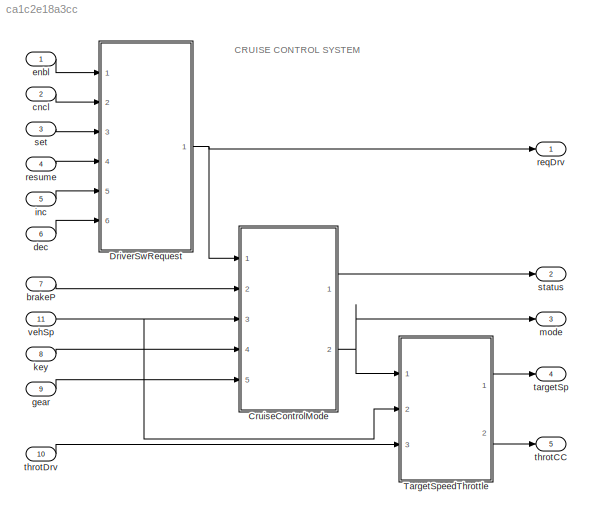
MODEL slx_ca1c2e18a3cc
KIND model
CONFIG AbsTol = auto
CONFIG EnableMultiTasking = off
CONFIG FixedStep = Ts
CONFIG MaxStep = auto
CONFIG MinStep = auto
CONFIG RelTol = 1e-3
CONFIG SampleTimeConstraint = Unconstrained
CONFIG SolverName = FixedStepDiscrete
CONFIG StartTime = 0.0
CONFIG StopTime = 10.0
BLOCK [ModelReference] CruiseControlMode
  ModelNameDialog = CruiseControlMode.slx
  ModelReferenceVersion = 4.7
  Ports = [5, 2]
BLOCK [ModelReference] DriverSwRequest
  ModelNameDialog = DriverSwRequest
  ModelReferenceVersion = 4.8
  Ports = [6, 1]
BLOCK [ModelReference] TargetSpeedThrottle
  ModelNameDialog = TargetSpeedThrottle
  ModelReferenceVersion = 4.7
  Ports = [3, 2]
BLOCK [Inport] brakeP
  Port = 7
BLOCK [Inport] cncl
  OutDataTypeStr = boolean
  Port = 2
BLOCK [Inport] dec
  OutDataTypeStr = boolean
  Port = 6
BLOCK [Inport] enbl
  OutDataTypeStr = boolean
BLOCK [Inport] gear
  Interpolate = off
  Port = 9
BLOCK [Inport] inc
  OutDataTypeStr = boolean
  Port = 5
BLOCK [Inport] key
  Port = 8
BLOCK [Outport] mode
  Port = 3
  VectorParamsAs1DForOutWhenUnconnected = off
BLOCK [Outport] reqDrv
  VectorParamsAs1DForOutWhenUnconnected = off
BLOCK [Inport] resume
  OutDataTypeStr = boolean
  Port = 4
BLOCK [Inport] set
  OutDataTypeStr = boolean
  Port = 3
BLOCK [Outport] status
  Port = 2
  VectorParamsAs1DForOutWhenUnconnected = off
BLOCK [Outport] targetSp
  Port = 4
  VectorParamsAs1DForOutWhenUnconnected = off
BLOCK [Outport] throtCC
  Port = 5
  VectorParamsAs1DForOutWhenUnconnected = off
BLOCK [Inport] throtDrv
  Port = 10
BLOCK [Inport] vehSp
  Port = 11
ANNOTATION (root): CRUISE CONTROL SYSTEM
LINE CruiseControlMode:1 -> status:1
NET CruiseControlMode:2 -> TargetSpeedThrottle:1, mode:1
NET DriverSwRequest:1 -> CruiseControlMode:1, reqDrv:1
LINE TargetSpeedThrottle:1 -> targetSp:1
LINE TargetSpeedThrottle:2 -> throtCC:1
LINE brakeP:1 -> CruiseControlMode:2
LINE cncl:1 -> DriverSwRequest:2
LINE dec:1 -> DriverSwRequest:6
LINE enbl:1 -> DriverSwRequest:1
LINE gear:1 -> CruiseControlMode:5
LINE inc:1 -> DriverSwRequest:5
LINE key:1 -> CruiseControlMode:4
LINE resume:1 -> DriverSwRequest:4
LINE set:1 -> DriverSwRequest:3
LINE throtDrv:1 -> TargetSpeedThrottle:3
NET vehSp:1 -> CruiseControlMode:3, TargetSpeedThrottle:2
note: NET lines group one-source signal fan-out (src -> all destinations, sorted); 1:1 wires keep LINE
